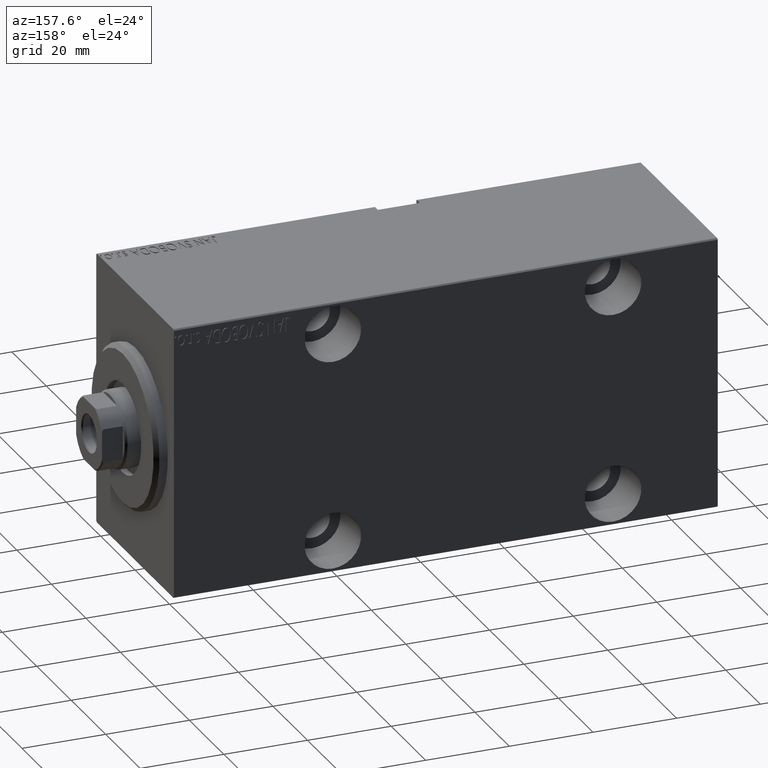
[diagram: clean part render]
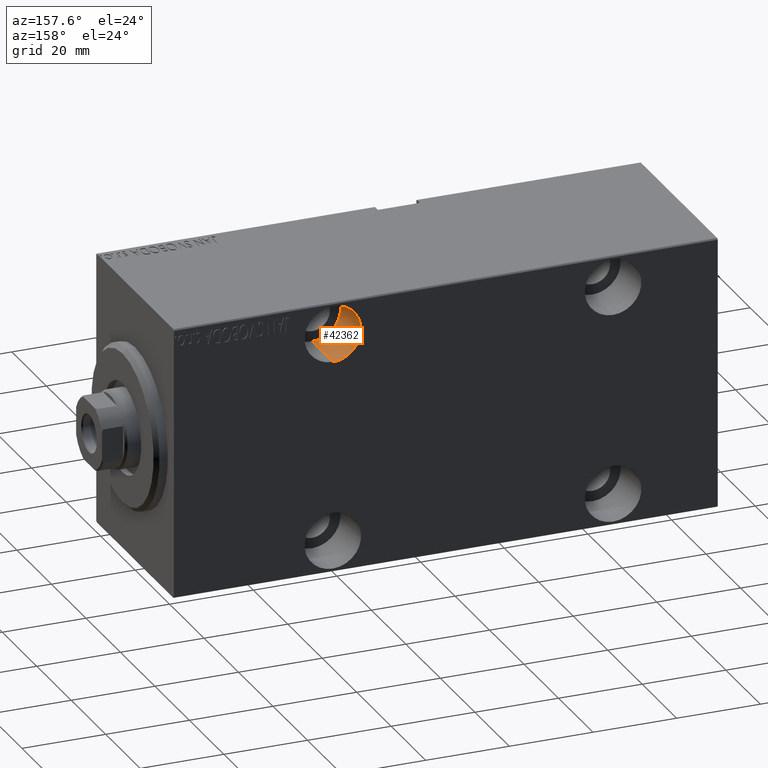
[diagram: same view with one face highlighted and labeled with its STEP entity id]
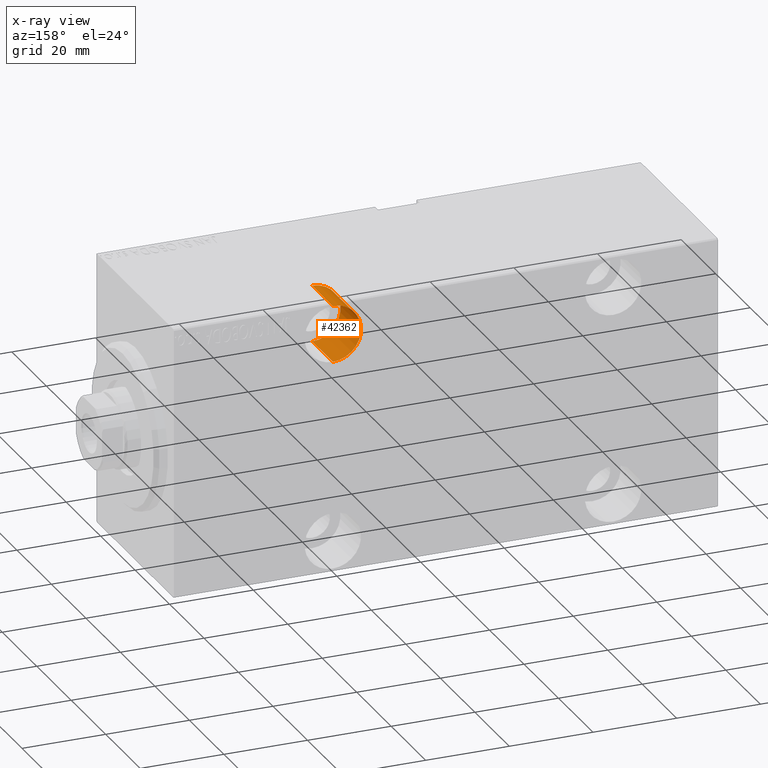
[diagram: x-ray of the same camera — body ghosted, the highlighted face saturated]
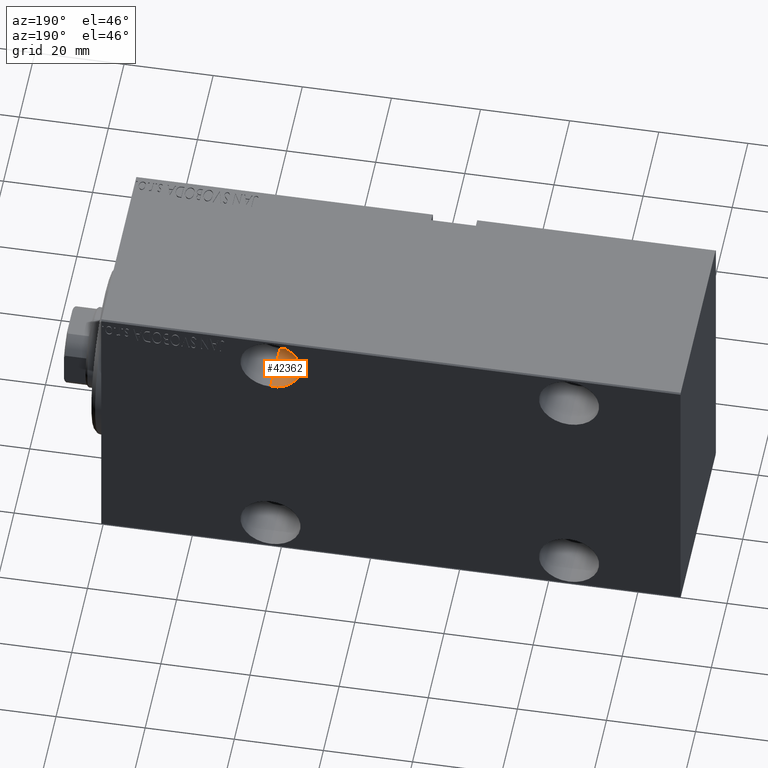
[diagram: same view with one face highlighted and labeled with its STEP entity id]
A machine part, auxiliary view. The second image highlights one B-rep face of the part: STEP entity #42362.
The next image is the same camera in x-ray: the body ghosted, the highlighted face saturated — about 0% of this face is hidden behind the body in this view.
A second angle (auxiliary view) of the same face is appended — the face is thin or edge-on in the first view.
In plain terms, the highlighted cylindrical surface (edge-blend (fillet) strip) has radius 6.75 mm, axis along (0, 1, -0).
Its self-contained STEP definition (entity closure, byte-faithful):
#278 = AXIS2_PLACEMENT_3D ( 'NONE', #21288, #11523, #8915 ) ;
#896 = DIRECTION ( 'NONE',  ( -0.000000000000000000, -1.000000000000000000, -0.000000000000000000 ) ) ;
#2345 = CIRCLE ( 'NONE', #278, 6.749999999999999112 ) ;
#3355 = CARTESIAN_POINT ( 'NONE',  ( 38.00000000000000000, -22.49999999999999645, 18.24999999999999289 ) ) ;
#3791 = EDGE_LOOP ( 'NONE', ( #11156, #17835, #12813, #16806 ) ) ;
#4152 = LINE ( 'NONE', #17815, #7338 ) ;
#4871 = DIRECTION ( 'NONE',  ( -0.000000000000000000, -1.000000000000000000, -0.000000000000000000 ) ) ;
#5597 = DIRECTION ( 'NONE',  ( -0.000000000000000000, -1.000000000000000000, -0.000000000000000000 ) ) ;
#7338 = VECTOR ( 'NONE', #896, 1000.000000000000000 ) ;
#7403 = AXIS2_PLACEMENT_3D ( 'NONE', #35451, #4871, #41542 ) ;
#7550 = EDGE_CURVE ( 'NONE', #27103, #32511, #2345, .T. ) ;
#8775 = FACE_OUTER_BOUND ( 'NONE', #3791, .T. ) ;
#8915 = DIRECTION ( 'NONE',  ( 0.000000000000000000, 0.000000000000000000, -1.000000000000000000 ) ) ;
#9491 = VECTOR ( 'NONE', #5597, 1000.000000000000000 ) ;
#11156 = ORIENTED_EDGE ( 'NONE', *, *, #42683, .F. ) ;
#11523 = DIRECTION ( 'NONE',  ( 0.000000000000000000, -1.000000000000000000, 0.000000000000000000 ) ) ;
#12813 = ORIENTED_EDGE ( 'NONE', *, *, #40284, .T. ) ;
#14669 = VERTEX_POINT ( 'NONE', #28582 ) ;
#15178 = EDGE_CURVE ( 'NONE', #14669, #16180, #32224, .T. ) ;
#15981 = CARTESIAN_POINT ( 'NONE',  ( 38.00000000000000000, -10.49999999999999467, 31.74999999999999289 ) ) ;
#16180 = VERTEX_POINT ( 'NONE', #38962 ) ;
#16806 = ORIENTED_EDGE ( 'NONE', *, *, #7550, .T. ) ;
#17815 = CARTESIAN_POINT ( 'NONE',  ( 38.00000000000000000, -10.49999999999999467, 18.24999999999999289 ) ) ;
#17835 = ORIENTED_EDGE ( 'NONE', *, *, #15178, .F. ) ;
#18321 = CYLINDRICAL_SURFACE ( 'NONE', #7403, 6.749999999999999112 ) ;
#21288 = CARTESIAN_POINT ( 'NONE',  ( 38.00000000000000000, -22.49999999999999645, 24.99999999999998934 ) ) ;
#27103 = VERTEX_POINT ( 'NONE', #3355 ) ;
#28290 = CARTESIAN_POINT ( 'NONE',  ( 38.00000000000000000, -22.49999999999999645, 31.74999999999999289 ) ) ;
#28582 = CARTESIAN_POINT ( 'NONE',  ( 38.00000000000000000, -10.49999999999999467, 18.24999999999999289 ) ) ;
#31254 = DIRECTION ( 'NONE',  ( 0.000000000000000000, -1.000000000000000000, 0.000000000000000000 ) ) ;
#32224 = CIRCLE ( 'NONE', #32911, 6.749999999999999112 ) ;
#32511 = VERTEX_POINT ( 'NONE', #28290 ) ;
#32911 = AXIS2_PLACEMENT_3D ( 'NONE', #37539, #31254, #41239 ) ;
#35118 = LINE ( 'NONE', #15981, #9491 ) ;
#35451 = CARTESIAN_POINT ( 'NONE',  ( 38.00000000000000000, -10.49999999999999467, 24.99999999999998934 ) ) ;
#37539 = CARTESIAN_POINT ( 'NONE',  ( 38.00000000000000000, -10.49999999999999467, 24.99999999999998934 ) ) ;
#38962 = CARTESIAN_POINT ( 'NONE',  ( 38.00000000000000000, -10.49999999999999467, 31.74999999999999289 ) ) ;
#40284 = EDGE_CURVE ( 'NONE', #14669, #27103, #4152, .T. ) ;
#41239 = DIRECTION ( 'NONE',  ( 0.000000000000000000, 0.000000000000000000, -1.000000000000000000 ) ) ;
#41542 = DIRECTION ( 'NONE',  ( 0.000000000000000000, 0.000000000000000000, -1.000000000000000000 ) ) ;
#42362 = ADVANCED_FACE ( 'NONE', ( #8775 ), #18321, .F. ) ;
#42683 = EDGE_CURVE ( 'NONE', #16180, #32511, #35118, .T. ) ;